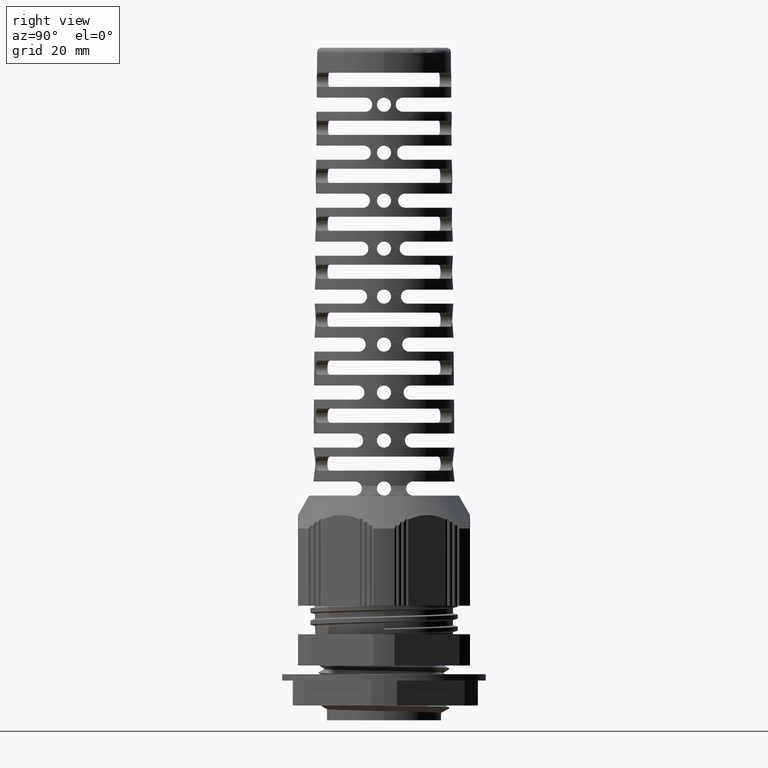
[diagram: clean part render]
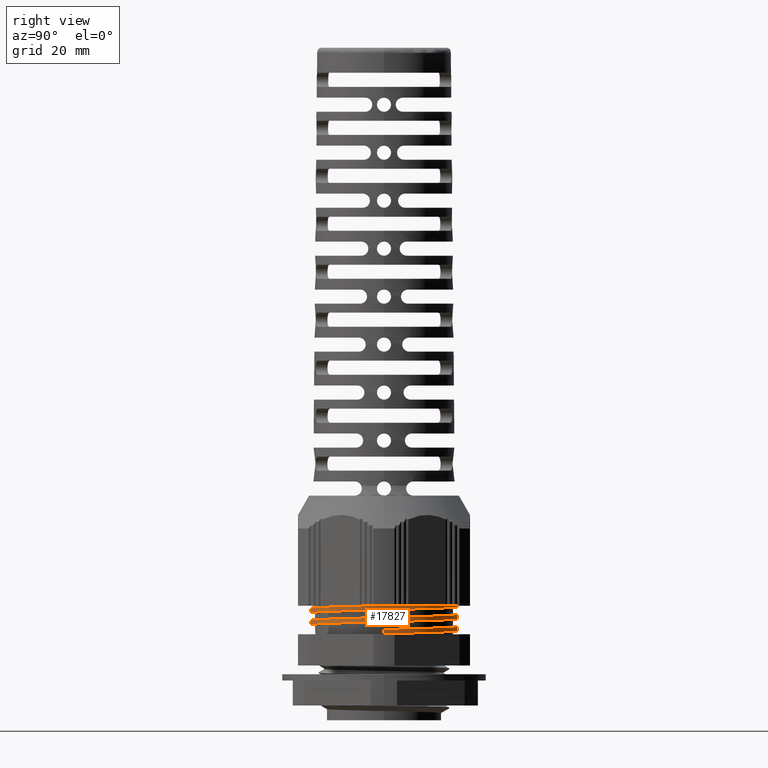
[diagram: same view with one face highlighted and labeled with its STEP entity id]
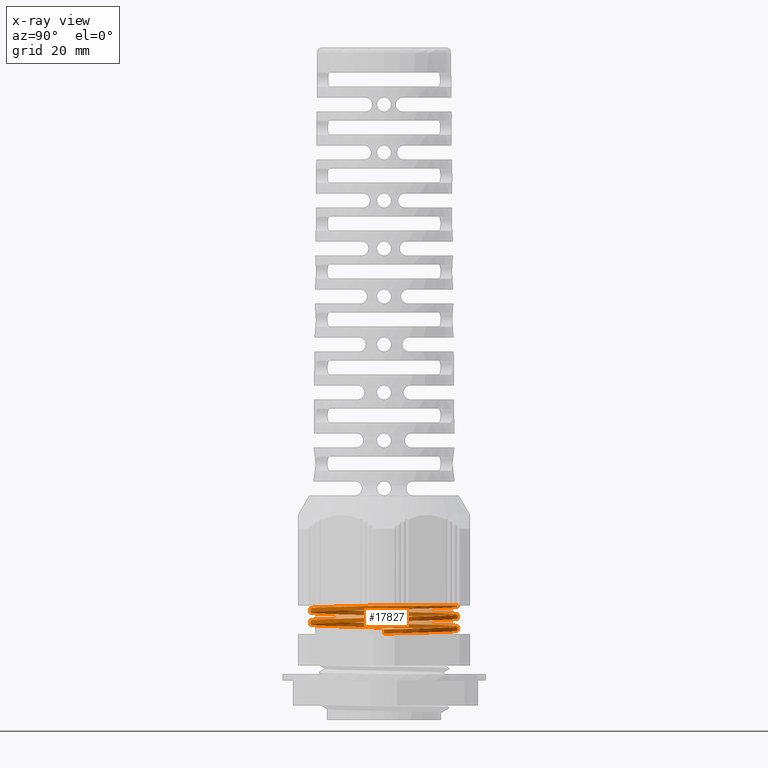
[diagram: x-ray of the same camera — body ghosted, the highlighted face saturated]
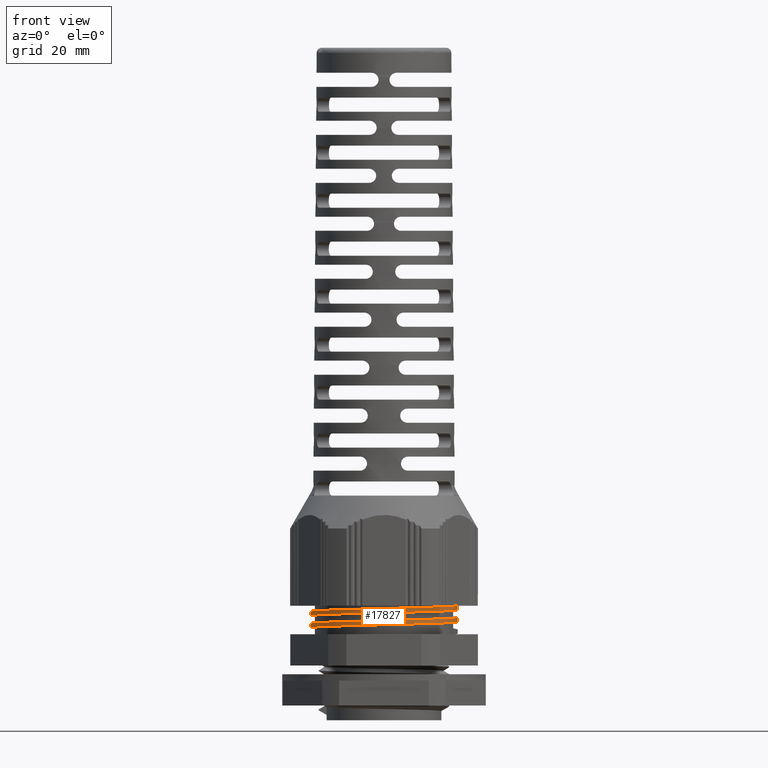
[diagram: same view with one face highlighted and labeled with its STEP entity id]
A machine part, right view. The second image highlights one B-rep face of the part: STEP entity #17827.
The next image is the same camera in x-ray: the body ghosted, the highlighted face saturated — about 38% of this face is hidden behind the body in this view.
A second angle (front view) of the same face is appended — the face is thin or edge-on in the first view.
In plain terms, the highlighted face is a freeform B-spline surface patch.
Its self-contained STEP definition (entity closure, byte-faithful):
#316 = ORIENTED_EDGE ( 'NONE', *, *, #9677, .T. ) ;
#342 = ORIENTED_EDGE ( 'NONE', *, *, #9695, .T. ) ;
#394 = ORIENTED_EDGE ( 'NONE', *, *, #10012, .T. ) ;
#2278 = CARTESIAN_POINT ( 'NONE',  ( 14.04720712397357300, -1.702489945992644100, 21.95609929398128200 ) ) ;
#7128 = VERTEX_POINT ( 'NONE', #14160 ) ;
#7143 = VERTEX_POINT ( 'NONE', #14180 ) ;
#7156 = VERTEX_POINT ( 'NONE', #14197 ) ;
#7401 = CARTESIAN_POINT ( 'NONE',  ( 14.04720712397357500, -1.702489945992644100, 21.95609929398128200 ) ) ;
#7404 = CARTESIAN_POINT ( 'NONE',  ( 13.60549302647974200, -5.347063255620591700, 21.86134776763183000 ) ) ;
#7406 = CARTESIAN_POINT ( 'NONE',  ( 11.44759047040607500, -8.317161319938914900, 21.76951905283829400 ) ) ;
#7407 = CARTESIAN_POINT ( 'NONE',  ( 8.745180940811442500, -12.03670893818197000, 21.65451905283828200 ) ) ;
#7408 = CARTESIAN_POINT ( 'NONE',  ( 4.372590470405719500, -13.45744970557709600, 21.53951905283830500 ) ) ;
#7410 = CARTESIAN_POINT ( 'NONE',  ( -5.442378978288242900E-015, -14.87819047297221800, 21.42451905283829600 ) ) ;
#7413 = CARTESIAN_POINT ( 'NONE',  ( 3.620326144305237700E-015, 14.87819047297221800, 20.27451905283829300 ) ) ;
#7414 = CARTESIAN_POINT ( 'NONE',  ( 4.372590470405727500, 13.45744970557709400, 20.15951905283830600 ) ) ;
#7415 = CARTESIAN_POINT ( 'NONE',  ( -14.15000000000070600, -4.597613701695847200, 20.96451905283828400 ) ) ;
#7416 = CARTESIAN_POINT ( 'NONE',  ( 8.745180940811451400, 12.03670893818196700, 20.04451905283828600 ) ) ;
#7417 = CARTESIAN_POINT ( 'NONE',  ( 14.15000000000070200, -4.597613701695860500, 19.58451905283829600 ) ) ;
#7418 = CARTESIAN_POINT ( 'NONE',  ( 11.44759047040607500, -8.317161319938914900, 19.46951905283829400 ) ) ;
#7419 = CARTESIAN_POINT ( 'NONE',  ( 4.372590470405719500, -13.45744970557709600, 19.23951905283829700 ) ) ;
#7420 = CARTESIAN_POINT ( 'NONE',  ( -5.442378978288242900E-015, -14.87819047297221800, 19.12451905283829500 ) ) ;
#7421 = CARTESIAN_POINT ( 'NONE',  ( -4.372590470405729200, -13.45744970557709400, 19.00951905283829600 ) ) ;
#7422 = CARTESIAN_POINT ( 'NONE',  ( 14.15000000000070700, -2.576697160258409900E-015, 19.69951905283829400 ) ) ;
#7423 = CARTESIAN_POINT ( 'NONE',  ( 11.44759047040608000, 8.317161319938907800, 19.92951905283829500 ) ) ;
#7424 = CARTESIAN_POINT ( 'NONE',  ( 14.15000000000070200, 4.597613701695850700, 19.81451905283829600 ) ) ;
#7425 = CARTESIAN_POINT ( 'NONE',  ( 8.745180940811442500, -12.03670893818197000, 19.35451905283828500 ) ) ;
#7426 = CARTESIAN_POINT ( 'NONE',  ( -8.745180940811453100, -12.03670893818196500, 18.89451905283829400 ) ) ;
#7427 = CARTESIAN_POINT ( 'NONE',  ( -14.15000000000070700, 4.309572381052000300E-015, 20.84951905283829300 ) ) ;
#7428 = CARTESIAN_POINT ( 'NONE',  ( -11.44759047040607500, 8.317161319938913200, 20.61951905283829600 ) ) ;
#7429 = CARTESIAN_POINT ( 'NONE',  ( -11.44759047040608000, -8.317161319938907800, 21.07951905283829300 ) ) ;
#7430 = CARTESIAN_POINT ( 'NONE',  ( -14.15000000000070200, 4.597613701695858700, 20.73451905283828700 ) ) ;
#7431 = CARTESIAN_POINT ( 'NONE',  ( -8.745180940811447800, 12.03670893818197000, 20.50451905283829400 ) ) ;
#7432 = CARTESIAN_POINT ( 'NONE',  ( -4.372590470405729200, -13.45744970557709400, 21.30951905283829400 ) ) ;
#7433 = CARTESIAN_POINT ( 'NONE',  ( -8.745180940811453100, -12.03670893818196500, 21.19451905283829500 ) ) ;
#7434 = CARTESIAN_POINT ( 'NONE',  ( -4.372590470405720400, 13.45744970557709600, 20.38951905283829500 ) ) ;
#7435 = CARTESIAN_POINT ( 'NONE',  ( 8.745180940811451400, 12.03670893818196700, 17.74451905283829200 ) ) ;
#7436 = CARTESIAN_POINT ( 'NONE',  ( 11.44759047040608000, 8.317161319938907800, 17.62951905283830500 ) ) ;
#7437 = CARTESIAN_POINT ( 'NONE',  ( -4.372590470405720400, 13.45744970557709600, 18.08951905283829500 ) ) ;
#7438 = CARTESIAN_POINT ( 'NONE',  ( 14.15000000000070900, -2.576697160258409900E-015, 17.39951905283829300 ) ) ;
#7439 = CARTESIAN_POINT ( 'NONE',  ( -14.15000000000070600, -4.597613701695847200, 18.66451905283828300 ) ) ;
#7440 = CARTESIAN_POINT ( 'NONE',  ( -11.44759047040607500, 8.317161319938913200, 18.31951905283829500 ) ) ;
#7441 = CARTESIAN_POINT ( 'NONE',  ( 3.620326144305237700E-015, 14.87819047297221800, 17.97451905283829300 ) ) ;
#7442 = CARTESIAN_POINT ( 'NONE',  ( 14.15000000000070200, 4.597613701695850700, 17.51451905283829500 ) ) ;
#7443 = CARTESIAN_POINT ( 'NONE',  ( -11.44759047040608000, -8.317161319938907800, 18.77951905283829200 ) ) ;
#7444 = CARTESIAN_POINT ( 'NONE',  ( -14.15000000000070700, 4.309572381052000300E-015, 18.54951905283829600 ) ) ;
#7445 = CARTESIAN_POINT ( 'NONE',  ( -14.15000000000070200, 4.597613701695858700, 18.43451905283829700 ) ) ;
#7448 = CARTESIAN_POINT ( 'NONE',  ( -8.745180940811447800, 12.03670893818197000, 18.20451905283829700 ) ) ;
#7451 = CARTESIAN_POINT ( 'NONE',  ( 4.372590470405727500, 13.45744970557709400, 17.85951905283829400 ) ) ;
#7499 = CARTESIAN_POINT ( 'NONE',  ( -6.724590892025369200, 12.44999507369016600, 21.95609929398128900 ) ) ;
#7501 = CARTESIAN_POINT ( 'NONE',  ( 0.4122793778184134000, 14.14763734563788100, 21.95609929398128600 ) ) ;
#7502 = CARTESIAN_POINT ( 'NONE',  ( -5.559715203440683600, 13.02808692829937700, 21.95609929398130000 ) ) ;
#7503 = CARTESIAN_POINT ( 'NONE',  ( 3.270142716486522900, 13.77073182068987300, 21.95609929398128200 ) ) ;
#7504 = CARTESIAN_POINT ( 'NONE',  ( 5.128961747074786400, 13.20366083134550900, 21.95609929398130000 ) ) ;
#7505 = CARTESIAN_POINT ( 'NONE',  ( 5.727617205619674600, 12.95525648611377700, 21.95609929398130000 ) ) ;
#7506 = CARTESIAN_POINT ( 'NONE',  ( 3.895270482984504400, 13.60712152249476300, 21.95609929398129300 ) ) ;
#7507 = CARTESIAN_POINT ( 'NONE',  ( 4.207205583957278200, 13.51395660650035800, 21.95609929398129600 ) ) ;
#7508 = CARTESIAN_POINT ( 'NONE',  ( 6.890243775199617300, 12.37613874330061100, 21.95609929398129300 ) ) ;
#7509 = CARTESIAN_POINT ( 'NONE',  ( 7.445067498001480800, 12.05006787446288500, 21.95609929398127800 ) ) ;
#7510 = CARTESIAN_POINT ( 'NONE',  ( 9.007731721597361100, 10.93152924409802800, 21.95609929398128900 ) ) ;
#7511 = CARTESIAN_POINT ( 'NONE',  ( 2.956199842464838600, 13.84147321694588200, 21.95609929398128200 ) ) ;
#7512 = CARTESIAN_POINT ( 'NONE',  ( 1.374339970526202700, 14.09773586933739300, 21.95609929398128900 ) ) ;
#7513 = CARTESIAN_POINT ( 'NONE',  ( 2.010316601128132200, 14.02116687224164300, 21.95609929398128200 ) ) ;
#7515 = CARTESIAN_POINT ( 'NONE',  ( 8.503814350403326100, 11.32776709342290800, 21.95609929398127800 ) ) ;
#7516 = CARTESIAN_POINT ( 'NONE',  ( 9.963834562814398100, 10.06774866530283000, 21.95609929398128600 ) ) ;
#7517 = CARTESIAN_POINT ( 'NONE',  ( -4.347051138530486200, 13.48126954532455300, 21.95609929398128600 ) ) ;
#7518 = CARTESIAN_POINT ( 'NONE',  ( -6.152870833190176500, 12.75879708346412400, 21.95609929398128600 ) ) ;
#7519 = CARTESIAN_POINT ( 'NONE',  ( -3.731260704428886100, 13.66420658047439900, 21.95609929398128600 ) ) ;
#7521 = CARTESIAN_POINT ( 'NONE',  ( -2.481344797545948800, 13.94545717837843500, 21.95609929398128600 ) ) ;
#7522 = CARTESIAN_POINT ( 'NONE',  ( -1.847218756174410900, 14.04376811686336900, 21.95609929398128600 ) ) ;
#7523 = CARTESIAN_POINT ( 'NONE',  ( -0.8819346968468686500, 14.12618052425567500, 21.95609929398128900 ) ) ;
#7524 = CARTESIAN_POINT ( 'NONE',  ( -0.5566103846455132700, 14.14274784886462700, 21.95609929398129600 ) ) ;
#7525 = CARTESIAN_POINT ( 'NONE',  ( 0.09023865905373293400, 14.15340908831764300, 21.95609929398130000 ) ) ;
#7528 = CARTESIAN_POINT ( 'NONE',  ( 12.30782589572092400, 7.010776966467079600, 21.95609929398128900 ) ) ;
#7529 = CARTESIAN_POINT ( 'NONE',  ( 11.24544471102424800, 8.612571174824143600, 21.95609929398128600 ) ) ;
#7530 = CARTESIAN_POINT ( 'NONE',  ( 12.61523964532266000, 6.441968159756148900, 21.95609929398129300 ) ) ;
#7535 = CARTESIAN_POINT ( 'NONE',  ( 14.13737424869452400, 0.8800973996131760100, 21.95609929398128900 ) ) ;
#7538 = CARTESIAN_POINT ( 'NONE',  ( 10.41748713180198700, 9.597518994451384300, 21.95609929398128900 ) ) ;
#7541 = CARTESIAN_POINT ( 'NONE',  ( 14.12538768921300300, -1.057423820596411500, 21.95609929398128900 ) ) ;
#7548 = CARTESIAN_POINT ( 'NONE',  ( 14.04720712397357300, -1.702489945992644100, 21.95609929398128200 ) ) ;
#7550 = CARTESIAN_POINT ( 'NONE',  ( 11.62336442220934200, 8.095120225261755600, 21.95609929398128900 ) ) ;
#7557 = CARTESIAN_POINT ( 'NONE',  ( 13.41991972849257000, 4.670241407217179000, 21.95609929398128900 ) ) ;
#7558 = CARTESIAN_POINT ( 'NONE',  ( 14.08175343310344200, 1.530516409471323900, 21.95609929398130000 ) ) ;
#7560 = CARTESIAN_POINT ( 'NONE',  ( 13.78541671323455900, 3.442067251513147900, 21.95609929398129600 ) ) ;
#7561 = CARTESIAN_POINT ( 'NONE',  ( 14.15875237279082600, -0.4118899445810831300, 21.95609929398128900 ) ) ;
#7961 = ORIENTED_EDGE ( 'NONE', *, *, #9981, .T. ) ;
#9122 = EDGE_LOOP ( 'NONE', ( #394, #7961, #342, #316 ) ) ;
#9677 = EDGE_CURVE ( 'NONE', #18501, #7156, #13877, .T. ) ;
#9695 = EDGE_CURVE ( 'NONE', #7143, #18501, #28104, .T. ) ;
#9981 = EDGE_CURVE ( 'NONE', #7128, #7143, #13926, .T. ) ;
#10012 = EDGE_CURVE ( 'NONE', #7156, #7128, #13002, .T. ) ;
#12681 = CARTESIAN_POINT ( 'NONE',  ( -8.745180940811453100, -12.03670893818196500, 18.09548094716170800 ) ) ;
#12682 = CARTESIAN_POINT ( 'NONE',  ( 11.44759047040608000, 8.317161319938907800, 19.13048094716170800 ) ) ;
#12683 = CARTESIAN_POINT ( 'NONE',  ( 4.372590470405719500, -13.45744970557709600, 18.44048094716171000 ) ) ;
#12684 = CARTESIAN_POINT ( 'NONE',  ( 14.15000000000070200, 4.597613701695850700, 19.01548094716170200 ) ) ;
#12685 = CARTESIAN_POINT ( 'NONE',  ( -14.15000000000070200, 4.597613701695858700, 19.93548094716169700 ) ) ;
#12686 = CARTESIAN_POINT ( 'NONE',  ( -14.15000000000070600, -4.597613701695847200, 20.16548094716170800 ) ) ;
#12687 = CARTESIAN_POINT ( 'NONE',  ( -11.44759047040608000, -8.317161319938907800, 20.28048094716170600 ) ) ;
#12688 = CARTESIAN_POINT ( 'NONE',  ( -4.372590470405720400, 13.45744970557709600, 17.29048094716170800 ) ) ;
#12689 = CARTESIAN_POINT ( 'NONE',  ( 11.44759047040607500, -8.317161319938914900, 18.67048094716170700 ) ) ;
#12692 = CARTESIAN_POINT ( 'NONE',  ( -8.745180940811453100, -12.03670893818196500, 20.39548094716170800 ) ) ;
#12695 = CARTESIAN_POINT ( 'NONE',  ( -14.15000000000070700, 4.309572381052000300E-015, 17.75048094716170900 ) ) ;
#12696 = CARTESIAN_POINT ( 'NONE',  ( 8.745180940811451400, 12.03670893818196700, 16.94548094716170500 ) ) ;
#12698 = CARTESIAN_POINT ( 'NONE',  ( 14.15000000000070200, 4.597613701695850700, 16.71548094716171200 ) ) ;
#12699 = CARTESIAN_POINT ( 'NONE',  ( -4.372590470405729200, -13.45744970557709400, 20.51048094716170700 ) ) ;
#12700 = CARTESIAN_POINT ( 'NONE',  ( 8.745180940811451400, 12.03670893818196700, 19.24548094716169900 ) ) ;
#12701 = CARTESIAN_POINT ( 'NONE',  ( -8.745180940811447800, 12.03670893818197000, 19.70548094716170700 ) ) ;
#12703 = CARTESIAN_POINT ( 'NONE',  ( -11.44759047040608000, -8.317161319938907800, 17.98048094716170600 ) ) ;
#12704 = CARTESIAN_POINT ( 'NONE',  ( 4.372590470405727500, 13.45744970557709400, 19.36048094716170800 ) ) ;
#12708 = CARTESIAN_POINT ( 'NONE',  ( 3.620326144305237700E-015, 14.87819047297221800, 19.47548094716170700 ) ) ;
#12709 = CARTESIAN_POINT ( 'NONE',  ( 14.15000000000070200, -4.597613701695860500, 18.78548094716170500 ) ) ;
#12713 = CARTESIAN_POINT ( 'NONE',  ( 11.44759047040608000, 8.317161319938907800, 16.83048094716170700 ) ) ;
#12714 = CARTESIAN_POINT ( 'NONE',  ( -11.44759047040607500, 8.317161319938913200, 17.52048094716170800 ) ) ;
#12717 = CARTESIAN_POINT ( 'NONE',  ( -4.372590470405729200, -13.45744970557709400, 18.21048094716171300 ) ) ;
#12718 = CARTESIAN_POINT ( 'NONE',  ( -5.442378978288242900E-015, -14.87819047297221800, 18.32548094716170100 ) ) ;
#12719 = CARTESIAN_POINT ( 'NONE',  ( 8.745180940811442500, -12.03670893818197000, 18.55548094716170800 ) ) ;
#12720 = CARTESIAN_POINT ( 'NONE',  ( -4.372590470405720400, 13.45744970557709600, 19.59048094716171600 ) ) ;
#12721 = CARTESIAN_POINT ( 'NONE',  ( -11.44759047040607500, 8.317161319938913200, 19.82048094716170900 ) ) ;
#12722 = CARTESIAN_POINT ( 'NONE',  ( -14.15000000000070700, 4.309572381052000300E-015, 20.05048094716170600 ) ) ;
#12723 = CARTESIAN_POINT ( 'NONE',  ( 14.15000000000070700, -2.576697160258409900E-015, 18.90048094716170700 ) ) ;
#12726 = CARTESIAN_POINT ( 'NONE',  ( 14.15000000000070900, -2.576697160258409900E-015, 16.60048094716170700 ) ) ;
#12727 = CARTESIAN_POINT ( 'NONE',  ( 3.620326144305237700E-015, 14.87819047297221800, 17.17548094716170600 ) ) ;
#12728 = CARTESIAN_POINT ( 'NONE',  ( -14.15000000000070200, 4.597613701695858700, 17.63548094716170000 ) ) ;
#12729 = CARTESIAN_POINT ( 'NONE',  ( -14.15000000000070600, -4.597613701695847200, 17.86548094716171100 ) ) ;
#12730 = CARTESIAN_POINT ( 'NONE',  ( 4.372590470405727500, 13.45744970557709400, 17.06048094716170700 ) ) ;
#12731 = CARTESIAN_POINT ( 'NONE',  ( -8.745180940811447800, 12.03670893818197000, 17.40548094716170600 ) ) ;
#12735 = CARTESIAN_POINT ( 'NONE',  ( 4.372590470405719500, -13.45744970557709600, 20.74048094716170700 ) ) ;
#12736 = CARTESIAN_POINT ( 'NONE',  ( 14.15000000000070200, 4.597613701695850700, 21.31548094716170300 ) ) ;
#12739 = CARTESIAN_POINT ( 'NONE',  ( -6.724590892025369200, 12.44999507369016600, 21.95609929398128900 ) ) ;
#12742 = CARTESIAN_POINT ( 'NONE',  ( 11.44759047040608000, 8.317161319938907800, 21.43048094716170800 ) ) ;
#12743 = CARTESIAN_POINT ( 'NONE',  ( 4.372590470405727500, 13.45744970557709400, 21.66048094716170500 ) ) ;
#12747 = CARTESIAN_POINT ( 'NONE',  ( 14.15000000000070700, -2.576697160258409900E-015, 21.20048094716170800 ) ) ;
#12751 = CARTESIAN_POINT ( 'NONE',  ( -5.442378978288242900E-015, -14.87819047297221800, 20.62548094716169800 ) ) ;
#12752 = CARTESIAN_POINT ( 'NONE',  ( 8.745180940811451400, 12.03670893818196700, 21.54548094716171000 ) ) ;
#12753 = CARTESIAN_POINT ( 'NONE',  ( 11.44759047040607500, -8.317161319938914900, 20.97048094716170800 ) ) ;
#12754 = CARTESIAN_POINT ( 'NONE',  ( 3.620326144305237700E-015, 14.87819047297221800, 21.77548094716170700 ) ) ;
#12757 = CARTESIAN_POINT ( 'NONE',  ( 8.745180940811442500, -12.03670893818197000, 20.85548094716170600 ) ) ;
#12764 = CARTESIAN_POINT ( 'NONE',  ( -5.594321430410405900, 13.06048525317403800, 21.92261271466919200 ) ) ;
#12766 = CARTESIAN_POINT ( 'NONE',  ( -4.372590470405720400, 13.45744970557709600, 21.89048094716170600 ) ) ;
#12774 = CARTESIAN_POINT ( 'NONE',  ( 14.15000000000070200, -4.597613701695860500, 21.08548094716170600 ) ) ;
#13002 = LINE ( 'NONE', #13006, #25856 ) ;
#13006 = CARTESIAN_POINT ( 'NONE',  ( 14.15000000000070700, -2.576697160258409900E-015, 17.00000000000000000 ) ) ;
#13065 = DIRECTION ( 'NONE',  ( 0.0000000000000000000, 0.0000000000000000000, -1.000000000000000000 ) ) ;
#13877 =( BOUNDED_CURVE ( )  B_SPLINE_CURVE ( 2, ( #7401, #7404, #7406, #7407, #7408, #7410, #7432, #7433, #7429, #7415, #7427, #7430, #7428, #7431, #7434, #7413, #7414, #7416, #7423, #7424, #7422, #7417, #7418, #7425, #7419, #7420, #7421, #7426, #7443, #7439, #7444, #7445, #7440, #7448, #7437, #7441, #7451, #7435, #7436, #7442, #7438 ),
 .UNSPECIFIED., .F., .T. ) 
 B_SPLINE_CURVE_WITH_KNOTS ( ( 3, 2, 2, 2, 2, 2, 2, 2, 2, 2, 2, 2, 2, 2, 2, 2, 2, 2, 2, 2, 3 ),
 ( 0.6038707283879888300, 0.6200000000000000000, 0.6400000000000000100, 0.6599999999999999200, 0.6799999999999999400, 0.6999999999999999600, 0.7199999999999999700, 0.7399999999999999900, 0.7600000000000000100, 0.7800000000000000300, 0.8000000000000000400, 0.8200000000000000600, 0.8399999999999999700, 0.8599999999999999900, 0.8800000000000000000, 0.9000000000000000200, 0.9200000000000000400, 0.9399999999999999500, 0.9599999999999999600, 0.9799999999999999800, 1.000000000000000000 ),
 .UNSPECIFIED. ) 
 CURVE ( )  GEOMETRIC_REPRESENTATION_ITEM ( )  RATIONAL_B_SPLINE_CURVE ( ( 0.9847217949060156400, 0.9605288628843244900, 1.000000000000000000, 0.9510565162951535300, 1.000000000000000000, 0.9510565162951535300, 1.000000000000000000, 0.9510565162951535300, 1.000000000000000000, 0.9510565162951535300, 1.000000000000000000, 0.9510565162951535300, 1.000000000000000000, 0.9510565162951535300, 1.000000000000000000, 0.9510565162951535300, 1.000000000000000000, 0.9510565162951535300, 1.000000000000000000, 0.9510565162951535300, 1.000000000000000000, 0.9510565162951535300, 1.000000000000000000, 0.9510565162951535300, 1.000000000000000000, 0.9510565162951535300, 1.000000000000000000, 0.9510565162951535300, 1.000000000000000000, 0.9510565162951535300, 1.000000000000000000, 0.9510565162951535300, 1.000000000000000000, 0.9510565162951535300, 1.000000000000000000, 0.9510565162951535300, 1.000000000000000000, 0.9510565162951535300, 1.000000000000000000, 0.9510565162951535300, 1.000000000000000000 ) ) 
 REPRESENTATION_ITEM ( '' )  );
#13926 =( BOUNDED_CURVE ( )  B_SPLINE_CURVE ( 2, ( #12726, #12698, #12713, #12696, #12730, #12727, #12688, #12731, #12714, #12728, #12695, #12729, #12703, #12681, #12717, #12718, #12683, #12719, #12689, #12709, #12723, #12684, #12682, #12700, #12704, #12708, #12720, #12701, #12721, #12685, #12722, #12686, #12687, #12692, #12699, #12751, #12735, #12757, #12753, #12774, #12747, #12736, #12742, #12752, #12743, #12754, #12766, #12764, #12739 ),
 .UNSPECIFIED., .F., .T. ) 
 B_SPLINE_CURVE_WITH_KNOTS ( ( 3, 2, 2, 2, 2, 2, 2, 2, 2, 2, 2, 2, 2, 2, 2, 2, 2, 2, 2, 2, 2, 2, 2, 2, 3 ),
 ( 0.0000000000000000000, 0.02000000000000000000, 0.04000000000000000100, 0.05999999999999999800, 0.08000000000000000200, 0.1000000000000000100, 0.1200000000000000000, 0.1400000000000000100, 0.1600000000000000000, 0.1799999999999999900, 0.2000000000000000100, 0.2200000000000000000, 0.2399999999999999900, 0.2600000000000000100, 0.2800000000000000300, 0.2999999999999999900, 0.3200000000000000100, 0.3400000000000000200, 0.3599999999999999900, 0.3800000000000000000, 0.4000000000000000200, 0.4199999999999999800, 0.4400000000000000000, 0.4600000000000000200, 0.4657924226558737800 ),
 .UNSPECIFIED. ) 
 CURVE ( )  GEOMETRIC_REPRESENTATION_ITEM ( )  RATIONAL_B_SPLINE_CURVE ( ( 1.000000000000000000, 0.9510565162951535300, 1.000000000000000000, 0.9510565162951535300, 1.000000000000000000, 0.9510565162951535300, 1.000000000000000000, 0.9510565162951535300, 1.000000000000000000, 0.9510565162951535300, 1.000000000000000000, 0.9510565162951535300, 1.000000000000000000, 0.9510565162951535300, 1.000000000000000000, 0.9510565162951535300, 1.000000000000000000, 0.9510565162951535300, 1.000000000000000000, 0.9510565162951535300, 1.000000000000000000, 0.9510565162951535300, 1.000000000000000000, 0.9510565162951535300, 1.000000000000000000, 0.9510565162951535300, 1.000000000000000000, 0.9510565162951535300, 1.000000000000000000, 0.9510565162951535300, 1.000000000000000000, 0.9510565162951535300, 1.000000000000000000, 0.9510565162951535300, 1.000000000000000000, 0.9510565162951535300, 1.000000000000000000, 0.9510565162951535300, 1.000000000000000000, 0.9510565162951535300, 1.000000000000000000, 0.9510565162951535300, 1.000000000000000000, 0.9510565162951535300, 1.000000000000000000, 0.9510565162951535300, 1.000000000000000000, 0.9858249328065329400, 0.9798606636490629900 ) ) 
 REPRESENTATION_ITEM ( '' )  );
#13942 =( BOUNDED_SURFACE ( )  B_SPLINE_SURFACE ( 1, 2, ( 
 ( #22572, #22562, #22566, #22564, #22565, #22575, #22563, #22567, #22568, #22589, #22591, #22595, #22581, #22664, #22613, #22609, #22652, #22612, #22640, #22614, #22635, #22663, #22605, #22645, #22648, #22658, #22604, #22662, #22646, #22634, #22608, #22665, #22636, #22649, #22656, #22647, #22610, #22626, #22643, #22637, #22615, #22627, #22603, #22629, #22611, #22651, #22617, #22661, #22653, #22638, #22602, #22631, #22606, #22619, #22630, #22632, #22633, #22639, #22657, #22607, #22616, #22618, #22650, #22659, #22628, #22654, #22620, #22641, #22642, #22621, #22644, #22660, #22655, #22622, #22623, #22624, #22625, #22717, #22707, #22724, #22708, #22672, #22669, #22715, #22718, #22698, #22703, #22700, #22677, #22697, #22711, #22668, #22691, #22673, #22674, #22692, #22688, #22670, #22679, #22696, #22699 ),
 ( #22704, #22720, #22728, #22675, #22680, #22710, #22721, #22693, #22716, #22676, #22690, #22694, #22678, #22701, #22723, #22705, #22712, #22671, #22702, #22681, #22706, #22719, #22667, #22727, #22682, #22709, #22725, #22713, #22714, #22695, #22722, #22683, #22684, #22726, #22729, #22666, #22685, #22686, #22687, #22689, #22765, #22774, #22777, #22736, #22745, #22757, #22731, #22740, #22771, #22752, #22766, #22768, #22753, #22746, #22778, #22782, #22779, #22751, #22735, #22760, #22732, #22781, #22783, #22789, #22763, #22744, #22754, #22761, #22767, #22769, #22764, #22758, #22737, #22755, #22750, #22756, #22759, #22738, #22741, #22733, #22773, #22772, #22775, #22739, #22792, #22742, #22743, #22780, #22747, #22770, #22748, #22776, #22791, #22734, #22784, #22785, #22786, #22749, #22790, #22788, #22787 ) ),
 .UNSPECIFIED., .F., .F., .T. ) 
 B_SPLINE_SURFACE_WITH_KNOTS ( ( 2, 2 ),
 ( 3, 2, 2, 2, 2, 2, 2, 2, 2, 2, 2, 2, 2, 2, 2, 2, 2, 2, 2, 2, 2, 2, 2, 2, 2, 2, 2, 2, 2, 2, 2, 2, 2, 2, 2, 2, 2, 2, 2, 2, 2, 2, 2, 2, 2, 2, 2, 2, 2, 2, 3 ),
 ( 0.0000000000000000000, 1.000000000000000000 ),
 ( 0.0000000000000000000, 0.02000000000000000000, 0.04000000000000000100, 0.05999999999999999800, 0.08000000000000000200, 0.1000000000000000100, 0.1200000000000000000, 0.1400000000000000100, 0.1600000000000000000, 0.1799999999999999900, 0.2000000000000000100, 0.2200000000000000000, 0.2399999999999999900, 0.2600000000000000100, 0.2800000000000000300, 0.2999999999999999900, 0.3200000000000000100, 0.3400000000000000200, 0.3599999999999999900, 0.3800000000000000000, 0.4000000000000000200, 0.4199999999999999800, 0.4400000000000000000, 0.4600000000000000200, 0.4799999999999999800, 0.5000000000000000000, 0.5200000000000000200, 0.5400000000000000400, 0.5600000000000000500, 0.5799999999999999600, 0.5999999999999999800, 0.6200000000000000000, 0.6400000000000000100, 0.6600000000000000300, 0.6800000000000000500, 0.6999999999999999600, 0.7199999999999999700, 0.7399999999999999900, 0.7600000000000000100, 0.7800000000000000300, 0.8000000000000000400, 0.8199999999999999500, 0.8399999999999999700, 0.8599999999999999900, 0.8800000000000000000, 0.9000000000000000200, 0.9200000000000000400, 0.9399999999999999500, 0.9599999999999999600, 0.9799999999999999800, 1.000000000000000000 ),
 .UNSPECIFIED. ) 
 GEOMETRIC_REPRESENTATION_ITEM ( )  RATIONAL_B_SPLINE_SURFACE ( (
 ( 1.000000000000000000, 0.9510565162951535300, 1.000000000000000000, 0.9510565162951535300, 1.000000000000000000, 0.9510565162951535300, 1.000000000000000000, 0.9510565162951535300, 1.000000000000000000, 0.9510565162951535300, 1.000000000000000000, 0.9510565162951535300, 1.000000000000000000, 0.9510565162951535300, 1.000000000000000000, 0.9510565162951535300, 1.000000000000000000, 0.9510565162951535300, 1.000000000000000000, 0.9510565162951535300, 1.000000000000000000, 0.9510565162951535300, 1.000000000000000000, 0.9510565162951535300, 1.000000000000000000, 0.9510565162951535300, 1.000000000000000000, 0.9510565162951535300, 1.000000000000000000, 0.9510565162951535300, 1.000000000000000000, 0.9510565162951535300, 1.000000000000000000, 0.9510565162951535300, 1.000000000000000000, 0.9510565162951535300, 1.000000000000000000, 0.9510565162951535300, 1.000000000000000000, 0.9510565162951535300, 1.000000000000000000, 0.9510565162951535300, 1.000000000000000000, 0.9510565162951535300, 1.000000000000000000, 0.9510565162951535300, 1.000000000000000000, 0.9510565162951535300, 1.000000000000000000, 0.9510565162951535300, 1.000000000000000000, 0.9510565162951535300, 1.000000000000000000, 0.9510565162951535300, 1.000000000000000000, 0.9510565162951535300, 1.000000000000000000, 0.9510565162951535300, 1.000000000000000000, 0.9510565162951535300, 1.000000000000000000, 0.9510565162951535300, 1.000000000000000000, 0.9510565162951535300, 1.000000000000000000, 0.9510565162951535300, 1.000000000000000000, 0.9510565162951535300, 1.000000000000000000, 0.9510565162951535300, 1.000000000000000000, 0.9510565162951535300, 1.000000000000000000, 0.9510565162951535300, 1.000000000000000000, 0.9510565162951535300, 1.000000000000000000, 0.9510565162951535300, 1.000000000000000000, 0.9510565162951535300, 1.000000000000000000, 0.9510565162951535300, 1.000000000000000000, 0.9510565162951535300, 1.000000000000000000, 0.9510565162951535300, 1.000000000000000000, 0.9510565162951535300, 1.000000000000000000, 0.9510565162951535300, 1.000000000000000000, 0.9510565162951535300, 1.000000000000000000, 0.9510565162951535300, 1.000000000000000000, 0.9510565162951535300, 1.000000000000000000, 0.9510565162951535300, 1.000000000000000000, 0.9510565162951535300, 1.000000000000000000),
 ( 1.000000000000000000, 0.9510565162951535300, 1.000000000000000000, 0.9510565162951535300, 1.000000000000000000, 0.9510565162951535300, 1.000000000000000000, 0.9510565162951535300, 1.000000000000000000, 0.9510565162951535300, 1.000000000000000000, 0.9510565162951535300, 1.000000000000000000, 0.9510565162951535300, 1.000000000000000000, 0.9510565162951535300, 1.000000000000000000, 0.9510565162951535300, 1.000000000000000000, 0.9510565162951535300, 1.000000000000000000, 0.9510565162951535300, 1.000000000000000000, 0.9510565162951535300, 1.000000000000000000, 0.9510565162951535300, 1.000000000000000000, 0.9510565162951535300, 1.000000000000000000, 0.9510565162951535300, 1.000000000000000000, 0.9510565162951535300, 1.000000000000000000, 0.9510565162951535300, 1.000000000000000000, 0.9510565162951535300, 1.000000000000000000, 0.9510565162951535300, 1.000000000000000000, 0.9510565162951535300, 1.000000000000000000, 0.9510565162951535300, 1.000000000000000000, 0.9510565162951535300, 1.000000000000000000, 0.9510565162951535300, 1.000000000000000000, 0.9510565162951535300, 1.000000000000000000, 0.9510565162951535300, 1.000000000000000000, 0.9510565162951535300, 1.000000000000000000, 0.9510565162951535300, 1.000000000000000000, 0.9510565162951535300, 1.000000000000000000, 0.9510565162951535300, 1.000000000000000000, 0.9510565162951535300, 1.000000000000000000, 0.9510565162951535300, 1.000000000000000000, 0.9510565162951535300, 1.000000000000000000, 0.9510565162951535300, 1.000000000000000000, 0.9510565162951535300, 1.000000000000000000, 0.9510565162951535300, 1.000000000000000000, 0.9510565162951535300, 1.000000000000000000, 0.9510565162951535300, 1.000000000000000000, 0.9510565162951535300, 1.000000000000000000, 0.9510565162951535300, 1.000000000000000000, 0.9510565162951535300, 1.000000000000000000, 0.9510565162951535300, 1.000000000000000000, 0.9510565162951535300, 1.000000000000000000, 0.9510565162951535300, 1.000000000000000000, 0.9510565162951535300, 1.000000000000000000, 0.9510565162951535300, 1.000000000000000000, 0.9510565162951535300, 1.000000000000000000, 0.9510565162951535300, 1.000000000000000000, 0.9510565162951535300, 1.000000000000000000, 0.9510565162951535300, 1.000000000000000000, 0.9510565162951535300, 1.000000000000000000) ) ) 
 REPRESENTATION_ITEM ( '' )  SURFACE ( )  );
#14160 = CARTESIAN_POINT ( 'NONE',  ( 14.15000000000070900, -2.576697160258409900E-015, 16.60048094716170700 ) ) ;
#14180 = CARTESIAN_POINT ( 'NONE',  ( -6.724590892025369200, 12.44999507369016600, 21.95609929398128900 ) ) ;
#14197 = CARTESIAN_POINT ( 'NONE',  ( 14.15000000000070900, -2.576697160258409900E-015, 17.39951905283829300 ) ) ;
#17827 = ADVANCED_FACE ( 'NONE', ( #22551 ), #13942, .T. ) ;
#18501 = VERTEX_POINT ( 'NONE', #2278 ) ;
#22551 = FACE_OUTER_BOUND ( 'NONE', #9122, .T. ) ;
#22562 = CARTESIAN_POINT ( 'NONE',  ( 14.15000000000070000, 4.597613701695850700, 17.51451905283829500 ) ) ;
#22563 = CARTESIAN_POINT ( 'NONE',  ( -4.372590470405720400, 13.45744970557709600, 18.08951905283829500 ) ) ;
#22564 = CARTESIAN_POINT ( 'NONE',  ( 8.745180940811451400, 12.03670893818196500, 17.74451905283829200 ) ) ;
#22565 = CARTESIAN_POINT ( 'NONE',  ( 4.372590470405727500, 13.45744970557709400, 17.85951905283829400 ) ) ;
#22566 = CARTESIAN_POINT ( 'NONE',  ( 11.44759047040608000, 8.317161319938907800, 17.62951905283830500 ) ) ;
#22567 = CARTESIAN_POINT ( 'NONE',  ( -8.745180940811446000, 12.03670893818196900, 18.20451905283829700 ) ) ;
#22568 = CARTESIAN_POINT ( 'NONE',  ( -11.44759047040607500, 8.317161319938913200, 18.31951905283829500 ) ) ;
#22572 = CARTESIAN_POINT ( 'NONE',  ( 14.15000000000070700, -2.576697160258409900E-015, 17.39951905283829300 ) ) ;
#22575 = CARTESIAN_POINT ( 'NONE',  ( 3.620326144305237700E-015, 14.87819047297221800, 17.97451905283829300 ) ) ;
#22581 = CARTESIAN_POINT ( 'NONE',  ( -11.44759047040608000, -8.317161319938907800, 18.77951905283829200 ) ) ;
#22589 = CARTESIAN_POINT ( 'NONE',  ( -14.15000000000070000, 4.597613701695859600, 18.43451905283829700 ) ) ;
#22591 = CARTESIAN_POINT ( 'NONE',  ( -14.15000000000070700, 4.309572381052000300E-015, 18.54951905283829600 ) ) ;
#22595 = CARTESIAN_POINT ( 'NONE',  ( -14.15000000000070400, -4.597613701695846300, 18.66451905283828000 ) ) ;
#22602 = CARTESIAN_POINT ( 'NONE',  ( -14.15000000000070700, 4.309572381052000300E-015, 23.14951905283829700 ) ) ;
#22603 = CARTESIAN_POINT ( 'NONE',  ( 11.44759047040608000, 8.317161319938907800, 22.22951905283829500 ) ) ;
#22604 = CARTESIAN_POINT ( 'NONE',  ( -4.372590470405720400, 13.45744970557709600, 20.38951905283829500 ) ) ;
#22605 = CARTESIAN_POINT ( 'NONE',  ( 11.44759047040608000, 8.317161319938907800, 19.92951905283829500 ) ) ;
#22606 = CARTESIAN_POINT ( 'NONE',  ( -11.44759047040608000, -8.317161319938907800, 23.37951905283829400 ) ) ;
#22607 = CARTESIAN_POINT ( 'NONE',  ( 14.15000000000070000, -4.597613701695861400, 24.18451905283830100 ) ) ;
#22608 = CARTESIAN_POINT ( 'NONE',  ( -14.15000000000070700, 4.309572381052000300E-015, 20.84951905283829300 ) ) ;
#22609 = CARTESIAN_POINT ( 'NONE',  ( -5.442378978288242900E-015, -14.87819047297221800, 19.12451905283829800 ) ) ;
#22610 = CARTESIAN_POINT ( 'NONE',  ( 4.372590470405719500, -13.45744970557709600, 21.53951905283830500 ) ) ;
#22611 = CARTESIAN_POINT ( 'NONE',  ( 4.372590470405727500, 13.45744970557709400, 22.45951905283829200 ) ) ;
#22612 = CARTESIAN_POINT ( 'NONE',  ( 8.745180940811442500, -12.03670893818197000, 19.35451905283828500 ) ) ;
#22613 = CARTESIAN_POINT ( 'NONE',  ( -4.372590470405729200, -13.45744970557709400, 19.00951905283829600 ) ) ;
#22614 = CARTESIAN_POINT ( 'NONE',  ( 14.15000000000070000, -4.597613701695861400, 19.58451905283829600 ) ) ;
#22615 = CARTESIAN_POINT ( 'NONE',  ( 14.15000000000070700, -2.576697160258409900E-015, 21.99951905283829500 ) ) ;
#22616 = CARTESIAN_POINT ( 'NONE',  ( 14.15000000000070700, -2.576697160258409900E-015, 24.29951905283829600 ) ) ;
#22617 = CARTESIAN_POINT ( 'NONE',  ( -4.372590470405720400, 13.45744970557709600, 22.68951905283830000 ) ) ;
#22618 = CARTESIAN_POINT ( 'NONE',  ( 14.15000000000070000, 4.597613701695850700, 24.41451905283829400 ) ) ;
#22619 = CARTESIAN_POINT ( 'NONE',  ( -8.745180940811453100, -12.03670893818196300, 23.49451905283829600 ) ) ;
#22620 = CARTESIAN_POINT ( 'NONE',  ( -4.372590470405720400, 13.45744970557709600, 24.98951905283829300 ) ) ;
#22621 = CARTESIAN_POINT ( 'NONE',  ( -14.15000000000070000, 4.597613701695859600, 25.33451905283828500 ) ) ;
#22622 = CARTESIAN_POINT ( 'NONE',  ( -8.745180940811453100, -12.03670893818196300, 25.79451905283829300 ) ) ;
#22623 = CARTESIAN_POINT ( 'NONE',  ( -4.372590470405729200, -13.45744970557709400, 25.90951905283829500 ) ) ;
#22624 = CARTESIAN_POINT ( 'NONE',  ( -5.442378978288242900E-015, -14.87819047297221800, 26.02451905283828300 ) ) ;
#22625 = CARTESIAN_POINT ( 'NONE',  ( 4.372590470405719500, -13.45744970557709600, 26.13951905283829500 ) ) ;
#22626 = CARTESIAN_POINT ( 'NONE',  ( 8.745180940811442500, -12.03670893818197000, 21.65451905283828200 ) ) ;
#22627 = CARTESIAN_POINT ( 'NONE',  ( 14.15000000000070000, 4.597613701695850700, 22.11451905283829700 ) ) ;
#22628 = CARTESIAN_POINT ( 'NONE',  ( 4.372590470405727500, 13.45744970557709400, 24.75951905283829600 ) ) ;
#22629 = CARTESIAN_POINT ( 'NONE',  ( 8.745180940811451400, 12.03670893818196500, 22.34451905283828300 ) ) ;
#22630 = CARTESIAN_POINT ( 'NONE',  ( -4.372590470405729200, -13.45744970557709400, 23.60951905283829400 ) ) ;
#22631 = CARTESIAN_POINT ( 'NONE',  ( -14.15000000000070400, -4.597613701695846300, 23.26451905283828100 ) ) ;
#22632 = CARTESIAN_POINT ( 'NONE',  ( -5.442378978288242900E-015, -14.87819047297221800, 23.72451905283828900 ) ) ;
#22633 = CARTESIAN_POINT ( 'NONE',  ( 4.372590470405719500, -13.45744970557709600, 23.83951905283829500 ) ) ;
#22634 = CARTESIAN_POINT ( 'NONE',  ( -14.15000000000070000, 4.597613701695859600, 20.73451905283828700 ) ) ;
#22635 = CARTESIAN_POINT ( 'NONE',  ( 14.15000000000070700, -2.576697160258409900E-015, 19.69951905283829400 ) ) ;
#22636 = CARTESIAN_POINT ( 'NONE',  ( -11.44759047040608000, -8.317161319938907800, 21.07951905283829300 ) ) ;
#22637 = CARTESIAN_POINT ( 'NONE',  ( 14.15000000000070000, -4.597613701695861400, 21.88451905283829600 ) ) ;
#22638 = CARTESIAN_POINT ( 'NONE',  ( -14.15000000000070000, 4.597613701695859600, 23.03451905283828400 ) ) ;
#22639 = CARTESIAN_POINT ( 'NONE',  ( 8.745180940811442500, -12.03670893818197000, 23.95451905283828600 ) ) ;
#22640 = CARTESIAN_POINT ( 'NONE',  ( 11.44759047040607500, -8.317161319938914900, 19.46951905283829400 ) ) ;
#22641 = CARTESIAN_POINT ( 'NONE',  ( -8.745180940811446000, 12.03670893818196900, 25.10451905283829500 ) ) ;
#22642 = CARTESIAN_POINT ( 'NONE',  ( -11.44759047040607500, 8.317161319938913200, 25.21951905283829400 ) ) ;
#22643 = CARTESIAN_POINT ( 'NONE',  ( 11.44759047040607500, -8.317161319938914900, 21.76951905283829400 ) ) ;
#22644 = CARTESIAN_POINT ( 'NONE',  ( -14.15000000000070700, 4.309572381052000300E-015, 25.44951905283829400 ) ) ;
#22645 = CARTESIAN_POINT ( 'NONE',  ( 8.745180940811451400, 12.03670893818196500, 20.04451905283828200 ) ) ;
#22646 = CARTESIAN_POINT ( 'NONE',  ( -11.44759047040607500, 8.317161319938913200, 20.61951905283829600 ) ) ;
#22647 = CARTESIAN_POINT ( 'NONE',  ( -5.442378978288242900E-015, -14.87819047297221800, 21.42451905283829200 ) ) ;
#22648 = CARTESIAN_POINT ( 'NONE',  ( 4.372590470405727500, 13.45744970557709400, 20.15951905283830600 ) ) ;
#22649 = CARTESIAN_POINT ( 'NONE',  ( -8.745180940811453100, -12.03670893818196300, 21.19451905283829500 ) ) ;
#22650 = CARTESIAN_POINT ( 'NONE',  ( 11.44759047040608000, 8.317161319938907800, 24.52951905283829600 ) ) ;
#22651 = CARTESIAN_POINT ( 'NONE',  ( 3.620326144305237700E-015, 14.87819047297221800, 22.57451905283829400 ) ) ;
#22652 = CARTESIAN_POINT ( 'NONE',  ( 4.372590470405719500, -13.45744970557709600, 19.23951905283829700 ) ) ;
#22653 = CARTESIAN_POINT ( 'NONE',  ( -11.44759047040607500, 8.317161319938913200, 22.91951905283829700 ) ) ;
#22654 = CARTESIAN_POINT ( 'NONE',  ( 3.620326144305237700E-015, 14.87819047297221800, 24.87451905283830200 ) ) ;
#22655 = CARTESIAN_POINT ( 'NONE',  ( -11.44759047040608000, -8.317161319938907800, 25.67951905283829500 ) ) ;
#22656 = CARTESIAN_POINT ( 'NONE',  ( -4.372590470405729200, -13.45744970557709400, 21.30951905283829400 ) ) ;
#22657 = CARTESIAN_POINT ( 'NONE',  ( 11.44759047040607500, -8.317161319938914900, 24.06951905283830200 ) ) ;
#22658 = CARTESIAN_POINT ( 'NONE',  ( 3.620326144305237700E-015, 14.87819047297221800, 20.27451905283829300 ) ) ;
#22659 = CARTESIAN_POINT ( 'NONE',  ( 8.745180940811451400, 12.03670893818196500, 24.64451905283828400 ) ) ;
#22660 = CARTESIAN_POINT ( 'NONE',  ( -14.15000000000070400, -4.597613701695846300, 25.56451905283830700 ) ) ;
#22661 = CARTESIAN_POINT ( 'NONE',  ( -8.745180940811446000, 12.03670893818196900, 22.80451905283829500 ) ) ;
#22662 = CARTESIAN_POINT ( 'NONE',  ( -8.745180940811446000, 12.03670893818196900, 20.50451905283829700 ) ) ;
#22663 = CARTESIAN_POINT ( 'NONE',  ( 14.15000000000070000, 4.597613701695850700, 19.81451905283830000 ) ) ;
#22664 = CARTESIAN_POINT ( 'NONE',  ( -8.745180940811453100, -12.03670893818196300, 18.89451905283829400 ) ) ;
#22665 = CARTESIAN_POINT ( 'NONE',  ( -14.15000000000070400, -4.597613701695846300, 20.96451905283828100 ) ) ;
#22666 = CARTESIAN_POINT ( 'NONE',  ( -5.442378978288242900E-015, -14.87819047297221800, 20.62548094716169400 ) ) ;
#22667 = CARTESIAN_POINT ( 'NONE',  ( 11.44759047040608000, 8.317161319938907800, 19.13048094716170800 ) ) ;
#22668 = CARTESIAN_POINT ( 'NONE',  ( -14.15000000000070400, -4.597613701695846300, 27.86451905283829300 ) ) ;
#22669 = CARTESIAN_POINT ( 'NONE',  ( 11.44759047040608000, 8.317161319938907800, 26.82951905283829700 ) ) ;
#22670 = CARTESIAN_POINT ( 'NONE',  ( 8.745180940811442500, -12.03670893818197000, 28.55451905283828400 ) ) ;
#22671 = CARTESIAN_POINT ( 'NONE',  ( 8.745180940811442500, -12.03670893818197000, 18.55548094716170800 ) ) ;
#22672 = CARTESIAN_POINT ( 'NONE',  ( 14.15000000000070000, 4.597613701695850700, 26.71451905283829100 ) ) ;
#22673 = CARTESIAN_POINT ( 'NONE',  ( -8.745180940811453100, -12.03670893818196300, 28.09451905283829700 ) ) ;
#22674 = CARTESIAN_POINT ( 'NONE',  ( -4.372590470405729200, -13.45744970557709400, 28.20951905283829600 ) ) ;
#22675 = CARTESIAN_POINT ( 'NONE',  ( 8.745180940811451400, 12.03670893818196500, 16.94548094716170500 ) ) ;
#22676 = CARTESIAN_POINT ( 'NONE',  ( -14.15000000000070000, 4.597613701695859600, 17.63548094716170000 ) ) ;
#22677 = CARTESIAN_POINT ( 'NONE',  ( -11.44759047040607500, 8.317161319938913200, 27.51951905283829400 ) ) ;
#22678 = CARTESIAN_POINT ( 'NONE',  ( -11.44759047040608000, -8.317161319938907800, 17.98048094716170600 ) ) ;
#22679 = CARTESIAN_POINT ( 'NONE',  ( 11.44759047040607500, -8.317161319938914900, 28.66951905283829300 ) ) ;
#22680 = CARTESIAN_POINT ( 'NONE',  ( 4.372590470405727500, 13.45744970557709400, 17.06048094716170700 ) ) ;
#22681 = CARTESIAN_POINT ( 'NONE',  ( 14.15000000000070000, -4.597613701695861400, 18.78548094716170900 ) ) ;
#22682 = CARTESIAN_POINT ( 'NONE',  ( 4.372590470405727500, 13.45744970557709400, 19.36048094716170800 ) ) ;
#22683 = CARTESIAN_POINT ( 'NONE',  ( -14.15000000000070400, -4.597613701695846300, 20.16548094716170800 ) ) ;
#22684 = CARTESIAN_POINT ( 'NONE',  ( -11.44759047040608000, -8.317161319938907800, 20.28048094716170600 ) ) ;
#22685 = CARTESIAN_POINT ( 'NONE',  ( 4.372590470405719500, -13.45744970557709600, 20.74048094716170700 ) ) ;
#22686 = CARTESIAN_POINT ( 'NONE',  ( 8.745180940811442500, -12.03670893818197000, 20.85548094716170600 ) ) ;
#22687 = CARTESIAN_POINT ( 'NONE',  ( 11.44759047040607500, -8.317161319938914900, 20.97048094716170800 ) ) ;
#22688 = CARTESIAN_POINT ( 'NONE',  ( 4.372590470405719500, -13.45744970557709600, 28.43951905283829600 ) ) ;
#22689 = CARTESIAN_POINT ( 'NONE',  ( 14.15000000000070000, -4.597613701695861400, 21.08548094716171000 ) ) ;
#22690 = CARTESIAN_POINT ( 'NONE',  ( -14.15000000000070700, 4.309572381052000300E-015, 17.75048094716170900 ) ) ;
#22691 = CARTESIAN_POINT ( 'NONE',  ( -11.44759047040608000, -8.317161319938907800, 27.97951905283830600 ) ) ;
#22692 = CARTESIAN_POINT ( 'NONE',  ( -5.442378978288242900E-015, -14.87819047297221800, 28.32451905283828400 ) ) ;
#22693 = CARTESIAN_POINT ( 'NONE',  ( -8.745180940811446000, 12.03670893818196900, 17.40548094716171000 ) ) ;
#22694 = CARTESIAN_POINT ( 'NONE',  ( -14.15000000000070400, -4.597613701695846300, 17.86548094716170400 ) ) ;
#22695 = CARTESIAN_POINT ( 'NONE',  ( -14.15000000000070000, 4.597613701695859600, 19.93548094716169700 ) ) ;
#22696 = CARTESIAN_POINT ( 'NONE',  ( 14.15000000000070000, -4.597613701695861400, 28.78451905283829900 ) ) ;
#22697 = CARTESIAN_POINT ( 'NONE',  ( -14.15000000000070000, 4.597613701695859600, 27.63451905283828600 ) ) ;
#22698 = CARTESIAN_POINT ( 'NONE',  ( 3.620326144305237700E-015, 14.87819047297221800, 27.17451905283829600 ) ) ;
#22699 = CARTESIAN_POINT ( 'NONE',  ( 14.15000000000070700, -2.576697160258409900E-015, 28.89951905283829300 ) ) ;
#22700 = CARTESIAN_POINT ( 'NONE',  ( -8.745180940811446000, 12.03670893818196900, 27.40451905283829600 ) ) ;
#22701 = CARTESIAN_POINT ( 'NONE',  ( -8.745180940811453100, -12.03670893818196300, 18.09548094716170800 ) ) ;
#22702 = CARTESIAN_POINT ( 'NONE',  ( 11.44759047040607500, -8.317161319938914900, 18.67048094716170700 ) ) ;
#22703 = CARTESIAN_POINT ( 'NONE',  ( -4.372590470405720400, 13.45744970557709600, 27.28951905283829400 ) ) ;
#22704 = CARTESIAN_POINT ( 'NONE',  ( 14.15000000000070700, -2.576697160258409900E-015, 16.60048094716170700 ) ) ;
#22705 = CARTESIAN_POINT ( 'NONE',  ( -5.442378978288242900E-015, -14.87819047297221800, 18.32548094716170100 ) ) ;
#22706 = CARTESIAN_POINT ( 'NONE',  ( 14.15000000000070700, -2.576697160258409900E-015, 18.90048094716170700 ) ) ;
#22707 = CARTESIAN_POINT ( 'NONE',  ( 11.44759047040607500, -8.317161319938914900, 26.36951905283829600 ) ) ;
#22708 = CARTESIAN_POINT ( 'NONE',  ( 14.15000000000070700, -2.576697160258409900E-015, 26.59951905283830300 ) ) ;
#22709 = CARTESIAN_POINT ( 'NONE',  ( 3.620326144305237700E-015, 14.87819047297221800, 19.47548094716170700 ) ) ;
#22710 = CARTESIAN_POINT ( 'NONE',  ( 3.620326144305237700E-015, 14.87819047297221800, 17.17548094716170600 ) ) ;
#22711 = CARTESIAN_POINT ( 'NONE',  ( -14.15000000000070700, 4.309572381052000300E-015, 27.74951905283829500 ) ) ;
#22712 = CARTESIAN_POINT ( 'NONE',  ( 4.372590470405719500, -13.45744970557709600, 18.44048094716171000 ) ) ;
#22713 = CARTESIAN_POINT ( 'NONE',  ( -8.745180940811446000, 12.03670893818196900, 19.70548094716171100 ) ) ;
#22714 = CARTESIAN_POINT ( 'NONE',  ( -11.44759047040607500, 8.317161319938913200, 19.82048094716170900 ) ) ;
#22715 = CARTESIAN_POINT ( 'NONE',  ( 8.745180940811451400, 12.03670893818196500, 26.94451905283828500 ) ) ;
#22716 = CARTESIAN_POINT ( 'NONE',  ( -11.44759047040607500, 8.317161319938913200, 17.52048094716170800 ) ) ;
#22717 = CARTESIAN_POINT ( 'NONE',  ( 8.745180940811442500, -12.03670893818197000, 26.25451905283828300 ) ) ;
#22718 = CARTESIAN_POINT ( 'NONE',  ( 4.372590470405727500, 13.45744970557709400, 27.05951905283829400 ) ) ;
#22719 = CARTESIAN_POINT ( 'NONE',  ( 14.15000000000070000, 4.597613701695850700, 19.01548094716170200 ) ) ;
#22720 = CARTESIAN_POINT ( 'NONE',  ( 14.15000000000070000, 4.597613701695850700, 16.71548094716171200 ) ) ;
#22721 = CARTESIAN_POINT ( 'NONE',  ( -4.372590470405720400, 13.45744970557709600, 17.29048094716170800 ) ) ;
#22722 = CARTESIAN_POINT ( 'NONE',  ( -14.15000000000070700, 4.309572381052000300E-015, 20.05048094716170600 ) ) ;
#22723 = CARTESIAN_POINT ( 'NONE',  ( -4.372590470405729200, -13.45744970557709400, 18.21048094716171300 ) ) ;
#22724 = CARTESIAN_POINT ( 'NONE',  ( 14.15000000000070000, -4.597613701695861400, 26.48451905283829400 ) ) ;
#22725 = CARTESIAN_POINT ( 'NONE',  ( -4.372590470405720400, 13.45744970557709600, 19.59048094716171600 ) ) ;
#22726 = CARTESIAN_POINT ( 'NONE',  ( -8.745180940811453100, -12.03670893818196300, 20.39548094716170800 ) ) ;
#22727 = CARTESIAN_POINT ( 'NONE',  ( 8.745180940811451400, 12.03670893818196500, 19.24548094716169500 ) ) ;
#22728 = CARTESIAN_POINT ( 'NONE',  ( 11.44759047040608000, 8.317161319938907800, 16.83048094716170700 ) ) ;
#22729 = CARTESIAN_POINT ( 'NONE',  ( -4.372590470405729200, -13.45744970557709400, 20.51048094716170700 ) ) ;
#22731 = CARTESIAN_POINT ( 'NONE',  ( -4.372590470405720400, 13.45744970557709600, 21.89048094716170600 ) ) ;
#22732 = CARTESIAN_POINT ( 'NONE',  ( 14.15000000000070700, -2.576697160258409900E-015, 23.50048094716171600 ) ) ;
#22733 = CARTESIAN_POINT ( 'NONE',  ( 14.15000000000070000, -4.597613701695861400, 25.68548094716170700 ) ) ;
#22734 = CARTESIAN_POINT ( 'NONE',  ( -8.745180940811453100, -12.03670893818196300, 27.29548094716170300 ) ) ;
#22735 = CARTESIAN_POINT ( 'NONE',  ( 11.44759047040607500, -8.317161319938914900, 23.27048094716170500 ) ) ;
#22736 = CARTESIAN_POINT ( 'NONE',  ( 8.745180940811451400, 12.03670893818196500, 21.54548094716170700 ) ) ;
#22737 = CARTESIAN_POINT ( 'NONE',  ( -11.44759047040608000, -8.317161319938907800, 24.88048094716170800 ) ) ;
#22738 = CARTESIAN_POINT ( 'NONE',  ( 8.745180940811442500, -12.03670893818197000, 25.45548094716170700 ) ) ;
#22739 = CARTESIAN_POINT ( 'NONE',  ( 8.745180940811451400, 12.03670893818196500, 26.14548094716171200 ) ) ;
#22740 = CARTESIAN_POINT ( 'NONE',  ( -8.745180940811446000, 12.03670893818196900, 22.00548094716170400 ) ) ;
#22741 = CARTESIAN_POINT ( 'NONE',  ( 11.44759047040607500, -8.317161319938914900, 25.57048094716170900 ) ) ;
#22742 = CARTESIAN_POINT ( 'NONE',  ( 3.620326144305237700E-015, 14.87819047297221800, 26.37548094716170900 ) ) ;
#22743 = CARTESIAN_POINT ( 'NONE',  ( -4.372590470405720400, 13.45744970557709600, 26.49048094716170700 ) ) ;
#22744 = CARTESIAN_POINT ( 'NONE',  ( 3.620326144305237700E-015, 14.87819047297221800, 24.07548094716171500 ) ) ;
#22745 = CARTESIAN_POINT ( 'NONE',  ( 4.372590470405727500, 13.45744970557709400, 21.66048094716170500 ) ) ;
#22746 = CARTESIAN_POINT ( 'NONE',  ( -8.745180940811453100, -12.03670893818196300, 22.69548094716170900 ) ) ;
#22747 = CARTESIAN_POINT ( 'NONE',  ( -11.44759047040607500, 8.317161319938913200, 26.72048094716170800 ) ) ;
#22748 = CARTESIAN_POINT ( 'NONE',  ( -14.15000000000070700, 4.309572381052000300E-015, 26.95048094716170800 ) ) ;
#22749 = CARTESIAN_POINT ( 'NONE',  ( 8.745180940811442500, -12.03670893818197000, 27.75548094716170800 ) ) ;
#22750 = CARTESIAN_POINT ( 'NONE',  ( -4.372590470405729200, -13.45744970557709400, 25.11048094716170800 ) ) ;
#22751 = CARTESIAN_POINT ( 'NONE',  ( 8.745180940811442500, -12.03670893818197000, 23.15548094716171000 ) ) ;
#22752 = CARTESIAN_POINT ( 'NONE',  ( -14.15000000000070000, 4.597613701695859600, 22.23548094716169700 ) ) ;
#22753 = CARTESIAN_POINT ( 'NONE',  ( -11.44759047040608000, -8.317161319938907800, 22.58048094716170700 ) ) ;
#22754 = CARTESIAN_POINT ( 'NONE',  ( -4.372590470405720400, 13.45744970557709600, 24.19048094716170600 ) ) ;
#22755 = CARTESIAN_POINT ( 'NONE',  ( -8.745180940811453100, -12.03670893818196300, 24.99548094716170300 ) ) ;
#22756 = CARTESIAN_POINT ( 'NONE',  ( -5.442378978288242900E-015, -14.87819047297221800, 25.22548094716169600 ) ) ;
#22757 = CARTESIAN_POINT ( 'NONE',  ( 3.620326144305237700E-015, 14.87819047297221800, 21.77548094716170700 ) ) ;
#22758 = CARTESIAN_POINT ( 'NONE',  ( -14.15000000000070400, -4.597613701695846300, 24.76548094716172000 ) ) ;
#22759 = CARTESIAN_POINT ( 'NONE',  ( 4.372590470405719500, -13.45744970557709600, 25.34048094716170900 ) ) ;
#22760 = CARTESIAN_POINT ( 'NONE',  ( 14.15000000000070000, -4.597613701695861400, 23.38548094716171400 ) ) ;
#22761 = CARTESIAN_POINT ( 'NONE',  ( -8.745180940811446000, 12.03670893818196900, 24.30548094716169800 ) ) ;
#22763 = CARTESIAN_POINT ( 'NONE',  ( 4.372590470405727500, 13.45744970557709400, 23.96048094716171000 ) ) ;
#22764 = CARTESIAN_POINT ( 'NONE',  ( -14.15000000000070700, 4.309572381052000300E-015, 24.65048094716171100 ) ) ;
#22765 = CARTESIAN_POINT ( 'NONE',  ( 14.15000000000070700, -2.576697160258409900E-015, 21.20048094716170800 ) ) ;
#22766 = CARTESIAN_POINT ( 'NONE',  ( -14.15000000000070700, 4.309572381052000300E-015, 22.35048094716171000 ) ) ;
#22767 = CARTESIAN_POINT ( 'NONE',  ( -11.44759047040607500, 8.317161319938913200, 24.42048094716170700 ) ) ;
#22768 = CARTESIAN_POINT ( 'NONE',  ( -14.15000000000070400, -4.597613701695846300, 22.46548094716170900 ) ) ;
#22769 = CARTESIAN_POINT ( 'NONE',  ( -14.15000000000070000, 4.597613701695859600, 24.53548094716169800 ) ) ;
#22770 = CARTESIAN_POINT ( 'NONE',  ( -14.15000000000070000, 4.597613701695859600, 26.83548094716169900 ) ) ;
#22771 = CARTESIAN_POINT ( 'NONE',  ( -11.44759047040607500, 8.317161319938913200, 22.12048094716171700 ) ) ;
#22772 = CARTESIAN_POINT ( 'NONE',  ( 14.15000000000070000, 4.597613701695850700, 25.91548094716169700 ) ) ;
#22773 = CARTESIAN_POINT ( 'NONE',  ( 14.15000000000070700, -2.576697160258409900E-015, 25.80048094716170600 ) ) ;
#22774 = CARTESIAN_POINT ( 'NONE',  ( 14.15000000000070000, 4.597613701695850700, 21.31548094716170300 ) ) ;
#22775 = CARTESIAN_POINT ( 'NONE',  ( 11.44759047040608000, 8.317161319938907800, 26.03048094716171700 ) ) ;
#22776 = CARTESIAN_POINT ( 'NONE',  ( -14.15000000000070400, -4.597613701695846300, 27.06548094716170600 ) ) ;
#22777 = CARTESIAN_POINT ( 'NONE',  ( 11.44759047040608000, 8.317161319938907800, 21.43048094716170800 ) ) ;
#22778 = CARTESIAN_POINT ( 'NONE',  ( -4.372590470405729200, -13.45744970557709400, 22.81048094716170700 ) ) ;
#22779 = CARTESIAN_POINT ( 'NONE',  ( 4.372590470405719500, -13.45744970557709600, 23.04048094716170800 ) ) ;
#22780 = CARTESIAN_POINT ( 'NONE',  ( -8.745180940811446000, 12.03670893818196900, 26.60548094716169500 ) ) ;
#22781 = CARTESIAN_POINT ( 'NONE',  ( 14.15000000000070000, 4.597613701695850700, 23.61548094716169600 ) ) ;
#22782 = CARTESIAN_POINT ( 'NONE',  ( -5.442378978288242900E-015, -14.87819047297221800, 22.92548094716169500 ) ) ;
#22783 = CARTESIAN_POINT ( 'NONE',  ( 11.44759047040608000, 8.317161319938907800, 23.73048094716170900 ) ) ;
#22784 = CARTESIAN_POINT ( 'NONE',  ( -4.372590470405729200, -13.45744970557709400, 27.41048094716170900 ) ) ;
#22785 = CARTESIAN_POINT ( 'NONE',  ( -5.442378978288242900E-015, -14.87819047297221800, 27.52548094716169700 ) ) ;
#22786 = CARTESIAN_POINT ( 'NONE',  ( 4.372590470405719500, -13.45744970557709600, 27.64048094716170900 ) ) ;
#22787 = CARTESIAN_POINT ( 'NONE',  ( 14.15000000000070700, -2.576697160258409900E-015, 28.10048094716170700 ) ) ;
#22788 = CARTESIAN_POINT ( 'NONE',  ( 14.15000000000070000, -4.597613701695861400, 27.98548094716170800 ) ) ;
#22789 = CARTESIAN_POINT ( 'NONE',  ( 8.745180940811451400, 12.03670893818196500, 23.84548094716171100 ) ) ;
#22790 = CARTESIAN_POINT ( 'NONE',  ( 11.44759047040607500, -8.317161319938914900, 27.87048094716170600 ) ) ;
#22791 = CARTESIAN_POINT ( 'NONE',  ( -11.44759047040608000, -8.317161319938907800, 27.18048094716170800 ) ) ;
#22792 = CARTESIAN_POINT ( 'NONE',  ( 4.372590470405727500, 13.45744970557709400, 26.26048094716170700 ) ) ;
#25856 = VECTOR ( 'NONE', #13065, 1000.000000000000000 ) ;
#28104 = B_SPLINE_CURVE_WITH_KNOTS ( 'NONE', 3,
 ( #7499, #7518, #7502, #7517, #7519, #7521, #7522, #7523, #7524, #7525, #7501, #7512, #7513, #7511, #7503, #7506, #7507, #7504, #7505, #7508, #7509, #7515, #7510, #7516, #7538, #7529, #7550, #7528, #7530, #7557, #7560, #7558, #7535, #7561, #7541, #7548 ),
 .UNSPECIFIED., .F., .F.,
 ( 4, 2, 2, 2, 2, 2, 2, 2, 2, 2, 2, 2, 2, 2, 2, 2, 2, 4 ),
 ( 7.451238096990209600E-017, 0.001946239032329007500, 0.003892478064657940500, 0.005838717096986873600, 0.006811836613151339500, 0.007784956129315806300, 0.009731195161644740800, 0.01070431467780920600, 0.01167743419397367300, 0.01362367322630260400, 0.01556991225863153800, 0.01751615129096047200, 0.01946239032328940500, 0.02140862935561833500, 0.02335486838794726900, 0.02724734645260514000, 0.02919358548493407700, 0.03113982451726301400 ),
 .UNSPECIFIED. ) ;